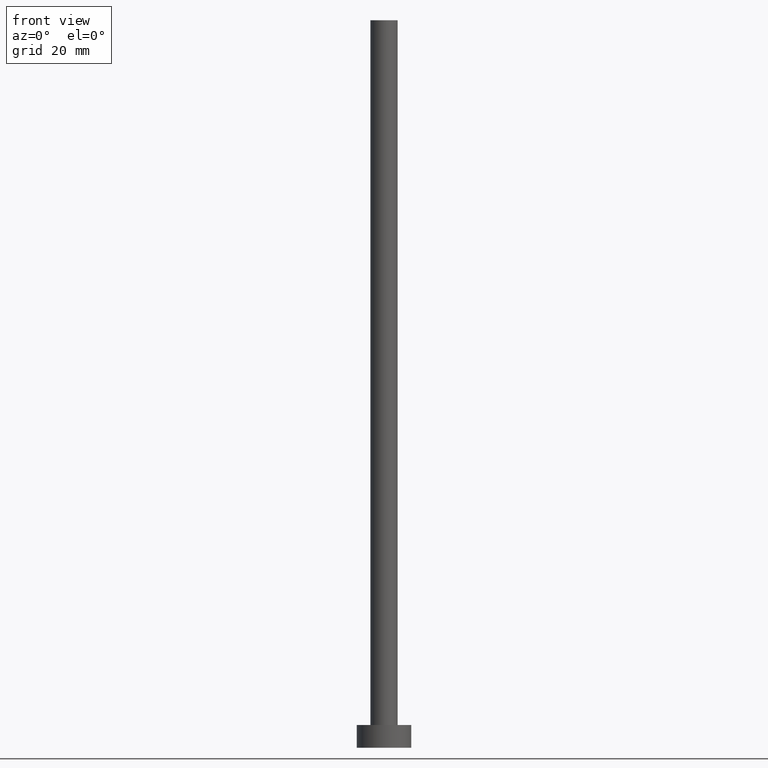
[diagram: clean part render]
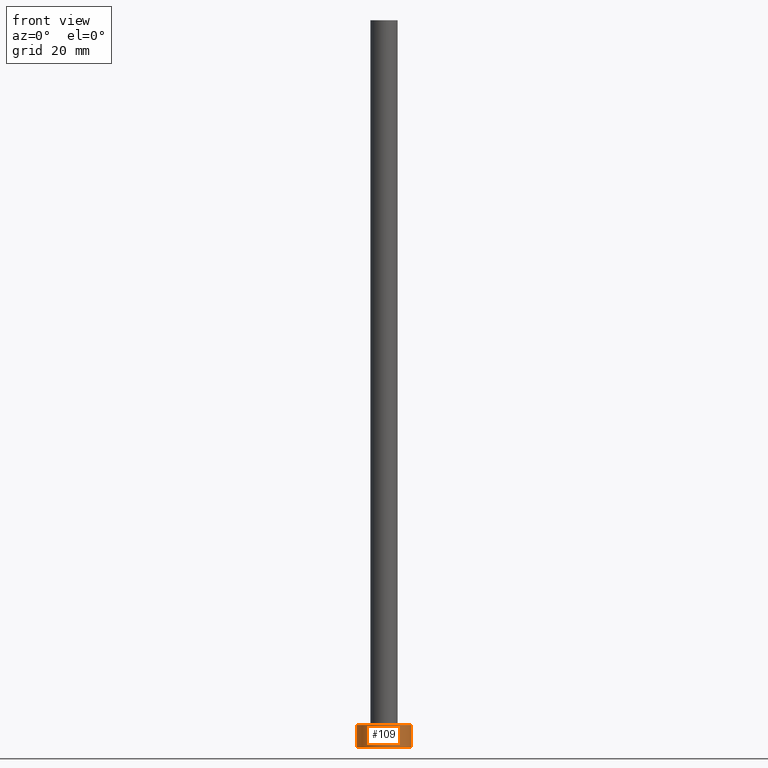
[diagram: same view with one face highlighted and labeled with its STEP entity id]
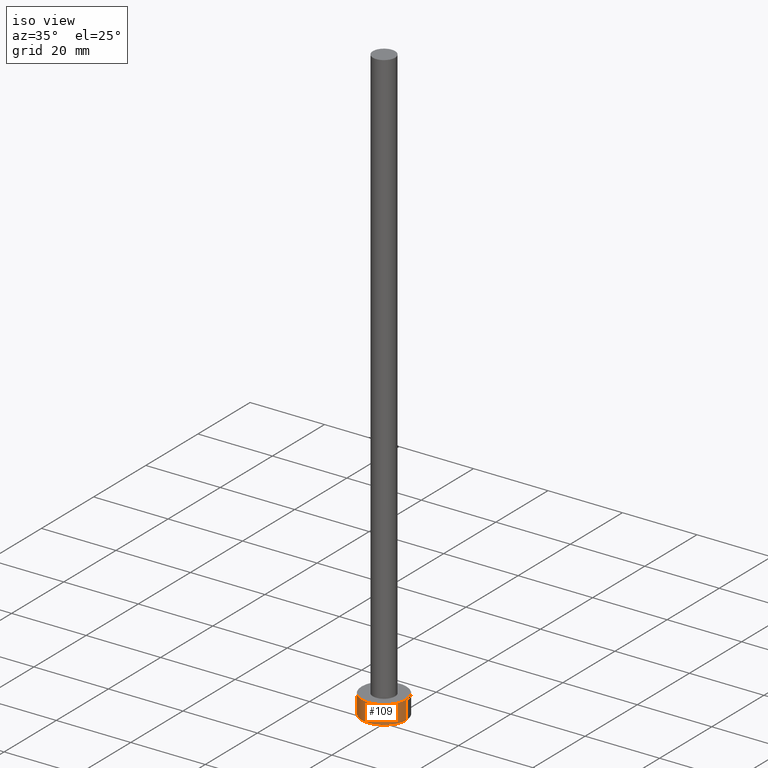
[diagram: same view with one face highlighted and labeled with its STEP entity id]
A machine part, front view. The second image highlights one B-rep face of the part: STEP entity #109.
A second angle (iso view) of the same face is appended — the face is thin or edge-on in the first view.
In plain terms, the highlighted cylindrical surface (edge-blend (fillet) strip) has radius 6 mm, axis along (-0, -0, -1).
Its self-contained STEP definition (entity closure, byte-faithful):
#19 = EDGE_CURVE ( 'NONE', #255, #88, #233, .T. ) ;
#22 = VERTEX_POINT ( 'NONE', #213 ) ;
#24 = AXIS2_PLACEMENT_3D ( 'NONE', #175, #179, #113 ) ;
#31 = VECTOR ( 'NONE', #95, 1000.000000000000000 ) ;
#46 = EDGE_CURVE ( 'NONE', #22, #234, #211, .T. ) ;
#53 = DIRECTION ( 'NONE',  ( 0.000000000000000000, 0.000000000000000000, 1.000000000000000000 ) ) ;
#55 = DIRECTION ( 'NONE',  ( 1.000000000000000000, 0.000000000000000000, 0.000000000000000000 ) ) ;
#63 = CIRCLE ( 'NONE', #206, 6.000000000000000888 ) ;
#72 = CIRCLE ( 'NONE', #244, 6.000000000000000888 ) ;
#80 = CARTESIAN_POINT ( 'NONE',  ( 0.000000000000000000, 0.000000000000000000, 0.000000000000000000 ) ) ;
#88 = VERTEX_POINT ( 'NONE', #226 ) ;
#95 = DIRECTION ( 'NONE',  ( -0.000000000000000000, -0.000000000000000000, -1.000000000000000000 ) ) ;
#97 = DIRECTION ( 'NONE',  ( -0.000000000000000000, -0.000000000000000000, -1.000000000000000000 ) ) ;
#99 = CARTESIAN_POINT ( 'NONE',  ( 0.000000000000000000, 0.000000000000000000, 5.000000000000000000 ) ) ;
#103 = CARTESIAN_POINT ( 'NONE',  ( 6.000000000000000888, 7.347880794884120722E-16, 5.000000000000000000 ) ) ;
#104 = ORIENTED_EDGE ( 'NONE', *, *, #138, .T. ) ;
#109 = ADVANCED_FACE ( 'NONE', ( #173 ), #192, .T. ) ;
#113 = DIRECTION ( 'NONE',  ( -1.000000000000000000, 0.000000000000000000, 0.000000000000000000 ) ) ;
#116 = CARTESIAN_POINT ( 'NONE',  ( -6.000000000000000888, 0.000000000000000000, 0.000000000000000000 ) ) ;
#138 = EDGE_CURVE ( 'NONE', #234, #88, #63, .T. ) ;
#144 = ORIENTED_EDGE ( 'NONE', *, *, #19, .F. ) ;
#158 = DIRECTION ( 'NONE',  ( 0.000000000000000000, 0.000000000000000000, 1.000000000000000000 ) ) ;
#160 = DIRECTION ( 'NONE',  ( 1.000000000000000000, 0.000000000000000000, 0.000000000000000000 ) ) ;
#168 = EDGE_CURVE ( 'NONE', #22, #255, #72, .T. ) ;
#173 = FACE_OUTER_BOUND ( 'NONE', #232, .T. ) ;
#174 = CARTESIAN_POINT ( 'NONE',  ( 6.000000000000000888, 7.347880794884120722E-16, 5.000000000000000000 ) ) ;
#175 = CARTESIAN_POINT ( 'NONE',  ( 0.000000000000000000, 0.000000000000000000, 5.000000000000000000 ) ) ;
#179 = DIRECTION ( 'NONE',  ( -0.000000000000000000, -0.000000000000000000, -1.000000000000000000 ) ) ;
#192 = CYLINDRICAL_SURFACE ( 'NONE', #24, 6.000000000000000888 ) ;
#199 = ORIENTED_EDGE ( 'NONE', *, *, #46, .T. ) ;
#206 = AXIS2_PLACEMENT_3D ( 'NONE', #80, #158, #160 ) ;
#211 = LINE ( 'NONE', #215, #237 ) ;
#213 = CARTESIAN_POINT ( 'NONE',  ( -6.000000000000000888, 0.000000000000000000, 5.000000000000000000 ) ) ;
#215 = CARTESIAN_POINT ( 'NONE',  ( -6.000000000000000888, 0.000000000000000000, 5.000000000000000000 ) ) ;
#226 = CARTESIAN_POINT ( 'NONE',  ( 6.000000000000000888, 7.347880794884120722E-16, 0.000000000000000000 ) ) ;
#232 = EDGE_LOOP ( 'NONE', ( #144, #236, #199, #104 ) ) ;
#233 = LINE ( 'NONE', #103, #31 ) ;
#234 = VERTEX_POINT ( 'NONE', #116 ) ;
#236 = ORIENTED_EDGE ( 'NONE', *, *, #168, .F. ) ;
#237 = VECTOR ( 'NONE', #97, 1000.000000000000000 ) ;
#244 = AXIS2_PLACEMENT_3D ( 'NONE', #99, #53, #55 ) ;
#255 = VERTEX_POINT ( 'NONE', #174 ) ;